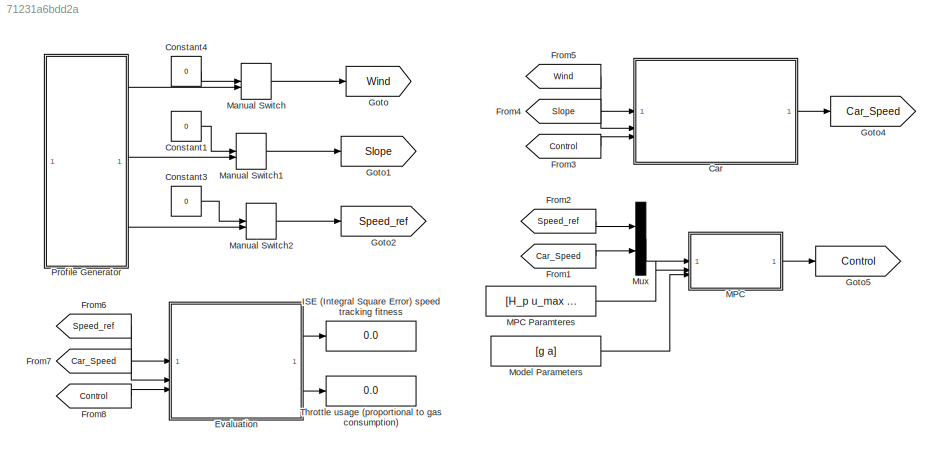
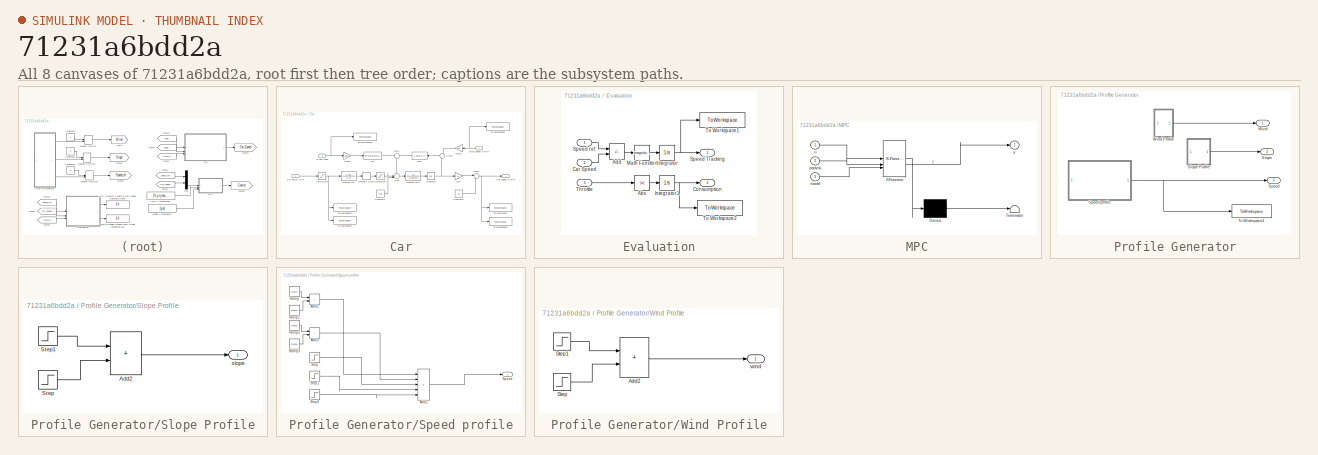
[diagram: thumbnail index - all 8 canvases of the model, root first then tree order]
MODEL slx_71231a6bdd2a
KIND model
CONFIG AbsTol = auto
CONFIG EnableMultiTasking = off
CONFIG FixedStep = auto
CONFIG MaxStep = auto
CONFIG MinStep = auto
CONFIG RelTol = 1e-3
CONFIG SampleTimeConstraint = Unconstrained
CONFIG SolverName = VariableStepAuto
CONFIG StartTime = 0.0
CONFIG StopTime = Tf
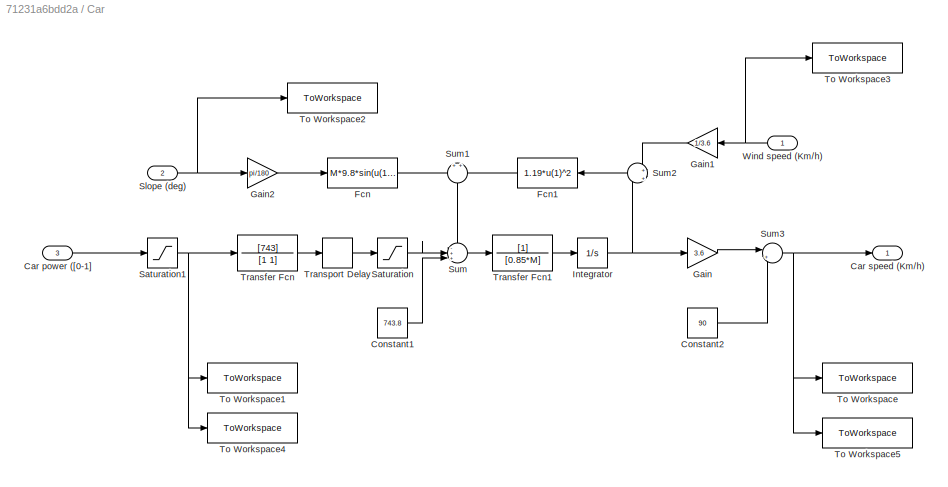
BLOCK [SubSystem] Car
BLOCK [Inport] Car/Car power ([0-1]
  Port = 3
BLOCK [Outport] Car/Car speed (Km//h)
BLOCK [Constant] Car/Constant1
  Value = 743.8
BLOCK [Constant] Car/Constant2
  Value = 90
BLOCK [Fcn] Car/Fcn
  Expr = M*9.8*sin(u(1))
BLOCK [Fcn] Car/Fcn1
  Expr = 1.19*u(1)^2
  NameLocation = top
BLOCK [Gain] Car/Gain
  Gain = 3.6
BLOCK [Gain] Car/Gain1
  Gain = 1/3.6
  NameLocation = top
BLOCK [Gain] Car/Gain2
  Gain = pi/180
BLOCK [Integrator] Car/Integrator
  InitialCondition = 25
BLOCK [Saturate] Car/Saturation
  LowerLimit = -3000
  UpperLimit = 3000
BLOCK [Saturate] Car/Saturation1
  LowerLimit = -1
  UpperLimit = 1
BLOCK [Inport] Car/Slope (deg)
  Port = 2
BLOCK [Sum] Car/Sum
  InputSameDT = on
  Inputs = -++|
  OutDataTypeStr = Inherit: Same as first input
  SaturateOnIntegerOverflow = on
BLOCK [Sum] Car/Sum1
  InputSameDT = on
  NameLocation = left
  OutDataTypeStr = Inherit: Same as first input
  SaturateOnIntegerOverflow = on
BLOCK [Sum] Car/Sum2
  InputSameDT = on
  Inputs = +|+
  NameLocation = top
  OutDataTypeStr = Inherit: Same as first input
  SaturateOnIntegerOverflow = on
BLOCK [Sum] Car/Sum3
  InputSameDT = on
  Inputs = |+-
  OutDataTypeStr = Inherit: Same as first input
  SaturateOnIntegerOverflow = on
BLOCK [ToWorkspace] Car/To Workspace
  FixptAsFi = on
  MaxDataPoints = inf
  SampleTime = -1
  SaveFormat = Timeseries
  VariableName = v
BLOCK [ToWorkspace] Car/To Workspace1
  FixptAsFi = on
  MaxDataPoints = inf
  SampleTime = -1
  SaveFormat = Timeseries
  VariableName = u
BLOCK [ToWorkspace] Car/To Workspace2
  FixptAsFi = on
  MaxDataPoints = inf
  SampleTime = -1
  SaveFormat = Timeseries
  VariableName = slope
BLOCK [ToWorkspace] Car/To Workspace3
  FixptAsFi = on
  MaxDataPoints = inf
  SampleTime = -1
  SaveFormat = Timeseries
  VariableName = wind
BLOCK [ToWorkspace] Car/To Workspace4
  FixptAsFi = on
  MaxDataPoints = inf
  SampleTime = Ts
  SaveFormat = Timeseries
  VariableName = us
BLOCK [ToWorkspace] Car/To Workspace5
  FixptAsFi = on
  MaxDataPoints = inf
  SampleTime = Ts
  SaveFormat = Timeseries
  VariableName = vs
BLOCK [TransferFcn] Car/Transfer Fcn
  Denominator = [1 1]
  Numerator = [743]
BLOCK [TransferFcn] Car/Transfer Fcn1
  Denominator = [0.85*M]
BLOCK [TransportDelay] Car/Transport Delay
  DelayTime = 0.3
BLOCK [Inport] Car/Wind speed  (Km//h)
BLOCK [Constant] Constant1
  Value = 0
BLOCK [Constant] Constant3
  Value = 0
BLOCK [Constant] Constant4
  Value = 0
BLOCK [SubSystem] Evaluation
BLOCK [Abs] Evaluation/Abs
  SaturateOnIntegerOverflow = off
BLOCK [Sum] Evaluation/Add
  IconShape = rectangular
  Inputs = +-
BLOCK [Inport] Evaluation/Car Speed
  Port = 2
BLOCK [Outport] Evaluation/Consumption
  Port = 2
BLOCK [Integrator] Evaluation/Integrator
BLOCK [Integrator] Evaluation/Integrator1
BLOCK [Math] Evaluation/Math Function
  Operator = magnitude^2
BLOCK [Outport] Evaluation/Speed Tracking
BLOCK [Inport] Evaluation/Speed ref
BLOCK [Inport] Evaluation/Throttle
  Port = 3
BLOCK [ToWorkspace] Evaluation/To Workspace1
  FixptAsFi = on
  MaxDataPoints = inf
  SampleTime = -1
  SaveFormat = Timeseries
  VariableName = Eval_Tracking
BLOCK [ToWorkspace] Evaluation/To Workspace2
  FixptAsFi = on
  MaxDataPoints = inf
  SampleTime = -1
  SaveFormat = Timeseries
  VariableName = Eval_Control
BLOCK [From] From1
  GotoTag = Car_Speed
BLOCK [From] From2
  GotoTag = Speed_ref
BLOCK [From] From3
  GotoTag = Control
BLOCK [From] From4
  GotoTag = Slope
BLOCK [From] From5
  GotoTag = Wind
BLOCK [From] From6
  GotoTag = Speed_ref
BLOCK [From] From7
  GotoTag = Car_Speed
BLOCK [From] From8
  GotoTag = Control
BLOCK [Goto] Goto
  GotoTag = Wind
BLOCK [Goto] Goto1
  GotoTag = Slope
BLOCK [Goto] Goto2
  GotoTag = Speed_ref
BLOCK [Goto] Goto4
  GotoTag = Car_Speed
BLOCK [Goto] Goto5
  GotoTag = Control
BLOCK [Display] ISE (Integral Square Error) speed tracking fitness
  Decimation = 1
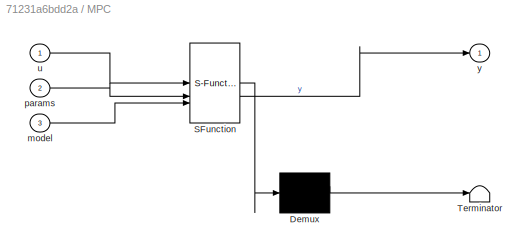
BLOCK [SubSystem] MPC
  ErrorFcn = Stateflow.Translate.translate
  LibrarySourceBlock = simulink/User-Defined\nFunctions/MATLAB Function
  PermitHierarchicalResolution = ExplicitOnly
  SFBlockType = MATLAB Function
  TreatAsAtomicUnit = on
BLOCK [Constant] MPC Paramteres
  Value = [H_p u_max du_max]
BLOCK [Demux] MPC/ Demux 
  Outputs = 1
BLOCK [S-Function] MPC/ SFunction 
  EnableBusSupport = on
  FunctionName = sf_sfun
  PortCounts = [3 2]
  SFcnIsStateOwnerBlock = off
  SFunctionDeploymentMode = off
  Tag = Stateflow S-Function 2
BLOCK [Terminator] MPC/ Terminator 
BLOCK [Inport] MPC/model
  Port = 3
BLOCK [Inport] MPC/params
  Port = 2
BLOCK [Inport] MPC/u
BLOCK [Outport] MPC/y
BLOCK [ManualSwitch] Manual Switch
BLOCK [ManualSwitch] Manual Switch1
BLOCK [ManualSwitch] Manual Switch2
  CurrentSetting = 0
BLOCK [Constant] Model Parameters
  Value = [g a]
BLOCK [Mux] Mux
  DisplayOption = bar
  Inputs = 2
BLOCK [SubSystem] Profile Generator
BLOCK [Outport] Profile Generator/Slope
  Port = 2
BLOCK [SubSystem] Profile Generator/Slope Profile
BLOCK [Sum] Profile Generator/Slope Profile/Add2
  IconShape = rectangular
BLOCK [Step] Profile Generator/Slope Profile/Step
  After = 5*(pi/180)
  SampleTime = 0
  Time = 400
BLOCK [Step] Profile Generator/Slope Profile/Step1
  After = -5*(pi/180)
  SampleTime = 0
  Time = 350
BLOCK [Outport] Profile Generator/Slope Profile/slope
BLOCK [Outport] Profile Generator/Speed
  Port = 3
BLOCK [SubSystem] Profile Generator/Speed profile
BLOCK [Sum] Profile Generator/Speed profile/Add1
  IconShape = rectangular
BLOCK [Sum] Profile Generator/Speed profile/Add2
  IconShape = rectangular
  Inputs = +++++
BLOCK [Sum] Profile Generator/Speed profile/Add3
  IconShape = rectangular
BLOCK [Reference] Profile Generator/Speed profile/Ramp  REF=simulink/Sources/Ramp
  SourceBlock = simulink/Sources/Ramp
  SourceType = Ramp
BLOCK [Reference] Profile Generator/Speed profile/Ramp1  REF=simulink/Sources/Ramp
  SourceBlock = simulink/Sources/Ramp
  SourceType = Ramp
BLOCK [Reference] Profile Generator/Speed profile/Ramp2  REF=simulink/Sources/Ramp
  SourceBlock = simulink/Sources/Ramp
  SourceType = Ramp
BLOCK [Reference] Profile Generator/Speed profile/Ramp3  REF=simulink/Sources/Ramp
  SourceBlock = simulink/Sources/Ramp
  SourceType = Ramp
BLOCK [Outport] Profile Generator/Speed profile/Speed
BLOCK [Step] Profile Generator/Speed profile/Step
  After = -10
  SampleTime = 0
  Time = 500
BLOCK [Step] Profile Generator/Speed profile/Step1
  After = 20
  SampleTime = 0
  Time = 600
BLOCK [Step] Profile Generator/Speed profile/Step2
  After = -10
  SampleTime = 0
  Time = 700
BLOCK [ToWorkspace] Profile Generator/To Workspace1
  FixptAsFi = on
  MaxDataPoints = inf
  SampleTime = -1
  SaveFormat = Timeseries
  VariableName = vr
BLOCK [Outport] Profile Generator/Wind
BLOCK [SubSystem] Profile Generator/Wind Profile
BLOCK [Sum] Profile Generator/Wind Profile/Add2
  IconShape = rectangular
BLOCK [Step] Profile Generator/Wind Profile/Step
  After = -20
  SampleTime = 0
  Time = 150
BLOCK [Step] Profile Generator/Wind Profile/Step1
  After = 20
  SampleTime = 0
  Time = 100
BLOCK [Outport] Profile Generator/Wind Profile/wind
BLOCK [Display] Throttle usage (proportional to gas consumption)
  Decimation = 1
LINE Car/Car power ([0-1]:1 -> Car/Saturation1:1
LINE Car/Constant1:1 -> Car/Sum:3
LINE Car/Constant2:1 -> Car/Sum3:2
LINE Car/Fcn1:1 -> Car/Sum1:2
LINE Car/Fcn:1 -> Car/Sum1:1
LINE Car/Gain1:1 -> Car/Sum2:1
LINE Car/Gain2:1 -> Car/Fcn:1
LINE Car/Gain:1 -> Car/Sum3:1
NET Car/Integrator:1 -> Car/Gain:1, Car/Sum2:2
NET Car/Saturation1:1 -> Car/To Workspace1:1, Car/To Workspace4:1, Car/Transfer Fcn:1
LINE Car/Saturation:1 -> Car/Sum:2
NET Car/Slope (deg):1 -> Car/Gain2:1, Car/To Workspace2:1
LINE Car/Sum1:1 -> Car/Sum:1
LINE Car/Sum2:1 -> Car/Fcn1:1
NET Car/Sum3:1 -> Car/Car speed (Km//h):1, Car/To Workspace5:1, Car/To Workspace:1
LINE Car/Sum:1 -> Car/Transfer Fcn1:1
LINE Car/Transfer Fcn1:1 -> Car/Integrator:1
LINE Car/Transfer Fcn:1 -> Car/Transport Delay:1
LINE Car/Transport Delay:1 -> Car/Saturation:1
NET Car/Wind speed  (Km//h):1 -> Car/Gain1:1, Car/To Workspace3:1
LINE Car:1 -> Goto4:1
LINE Constant1:1 -> Manual Switch1:1
LINE Constant3:1 -> Manual Switch2:1
LINE Constant4:1 -> Manual Switch:1
LINE Evaluation/Abs:1 -> Evaluation/Integrator1:1
LINE Evaluation/Add:1 -> Evaluation/Math Function:1
LINE Evaluation/Car Speed:1 -> Evaluation/Add:2
NET Evaluation/Integrator1:1 -> Evaluation/Consumption:1, Evaluation/To Workspace2:1
NET Evaluation/Integrator:1 -> Evaluation/Speed Tracking:1, Evaluation/To Workspace1:1
LINE Evaluation/Math Function:1 -> Evaluation/Integrator:1
LINE Evaluation/Speed ref:1 -> Evaluation/Add:1
LINE Evaluation/Throttle:1 -> Evaluation/Abs:1
LINE Evaluation:1 -> ISE (Integral Square Error) speed tracking fitness:1
LINE Evaluation:2 -> Throttle usage (proportional to gas consumption):1
LINE From1:1 -> Mux:2
LINE From2:1 -> Mux:1
LINE From3:1 -> Car:3
LINE From4:1 -> Car:2
LINE From5:1 -> Car:1
LINE From6:1 -> Evaluation:1
LINE From7:1 -> Evaluation:2
LINE From8:1 -> Evaluation:3
LINE MPC Paramteres:1 -> MPC:2
LINE MPC:1 -> Goto5:1
LINE Manual Switch1:1 -> Goto1:1
LINE Manual Switch2:1 -> Goto2:1
LINE Manual Switch:1 -> Goto:1
LINE Model Parameters:1 -> MPC:3
LINE Mux:1 -> MPC:1
LINE Profile Generator/Slope Profile/Add2:1 -> Profile Generator/Slope Profile/slope:1
LINE Profile Generator/Slope Profile/Step1:1 -> Profile Generator/Slope Profile/Add2:1
LINE Profile Generator/Slope Profile/Step:1 -> Profile Generator/Slope Profile/Add2:2
LINE Profile Generator/Slope Profile:1 -> Profile Generator/Slope:1
LINE Profile Generator/Speed profile/Add1:1 -> Profile Generator/Speed profile/Add2:1
LINE Profile Generator/Speed profile/Add2:1 -> Profile Generator/Speed profile/Speed:1
LINE Profile Generator/Speed profile/Add3:1 -> Profile Generator/Speed profile/Add2:2
LINE Profile Generator/Speed profile/Ramp1:1 -> Profile Generator/Speed profile/Add1:2
LINE Profile Generator/Speed profile/Ramp2:1 -> Profile Generator/Speed profile/Add3:1
LINE Profile Generator/Speed profile/Ramp3:1 -> Profile Generator/Speed profile/Add3:2
LINE Profile Generator/Speed profile/Ramp:1 -> Profile Generator/Speed profile/Add1:1
LINE Profile Generator/Speed profile/Step1:1 -> Profile Generator/Speed profile/Add2:4
LINE Profile Generator/Speed profile/Step2:1 -> Profile Generator/Speed profile/Add2:5
LINE Profile Generator/Speed profile/Step:1 -> Profile Generator/Speed profile/Add2:3
NET Profile Generator/Speed profile:1 -> Profile Generator/Speed:1, Profile Generator/To Workspace1:1
LINE Profile Generator/Wind Profile/Add2:1 -> Profile Generator/Wind Profile/wind:1
LINE Profile Generator/Wind Profile/Step1:1 -> Profile Generator/Wind Profile/Add2:1
LINE Profile Generator/Wind Profile/Step:1 -> Profile Generator/Wind Profile/Add2:2
LINE Profile Generator/Wind Profile:1 -> Profile Generator/Wind:1
LINE Profile Generator:1 -> Manual Switch:2
LINE Profile Generator:2 -> Manual Switch1:2
LINE Profile Generator:3 -> Manual Switch2:2
note: NET lines group one-source signal fan-out (src -> all destinations, sorted); 1:1 wires keep LINE
CHART MPC states=1 transitions=1
  STATE_LABEL 'eML_blk_kernel()'
  STATE_LABEL 'SCRIPT:\nfunction y = fcn(u, params, model)\n\n% Extract paramters from input #1\ny_sp=u(1);\ny_0=u(2);\n\n% Extract paramters from input #2\nH_p = params(1);   \nu_max=params(2);\ndu_max=params(3);\n\n% Extract paramters from input #3\n% Prediction model\ng=model(1);\na=model(2);\n\n% Prediction elements for QP problem\nL=zeros(H_p,H_p);\nfor j=1:H_p\n    for k=1:j \n        L(j,k)=g*a^(j-k);\n    end\nend\n\n\n% Elements...<+852ch>'
CHART  states=0 transitions=0
